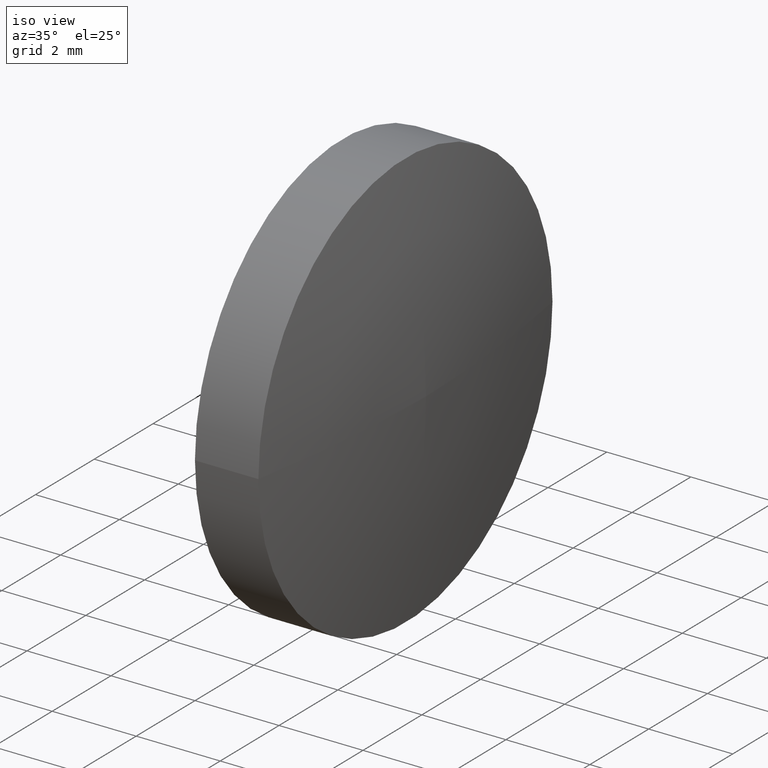
[diagram: clean part render]
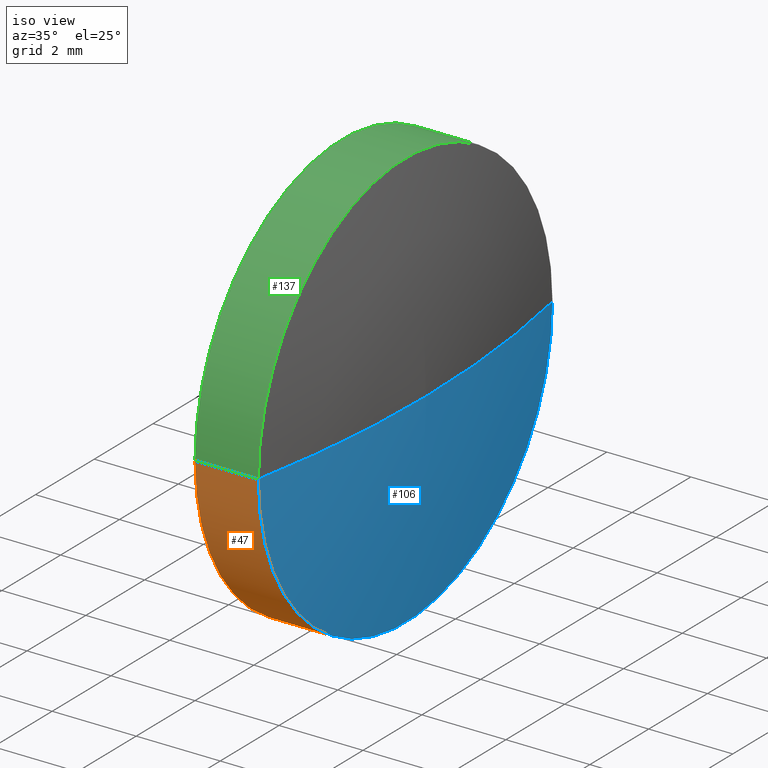
[diagram: same view with three faces highlighted in distinct colors, each labeled with its STEP entity id]
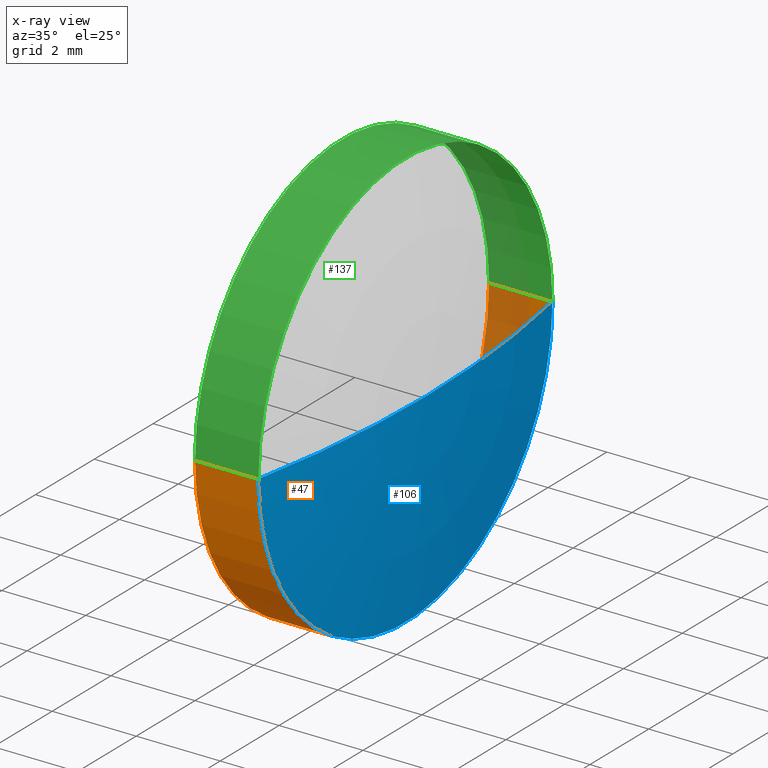
[diagram: x-ray of the same camera — body ghosted, the three highlighted faces saturated]
A machine part, iso view with three faces highlighted in distinct colors.
The next image is the same camera in x-ray (body ghosted, the three faces saturated) — at least one of them is partly hidden behind the body in this view.
Their STEP definitions:

[orange] entity #47 — the highlighted cylindrical surface (partial cylindrical patch) has radius 5 mm, axis along (1, 0, -0).
#10 = DIRECTION ( 'NONE',  ( 1.000000000000000000, 1.665334536937733300E-013, -0.0000000000000000000 ) ) ;
#24 = EDGE_CURVE ( 'NONE', #127, #59, #107, .T. ) ;
#30 = CARTESIAN_POINT ( 'NONE',  ( 896.0368167638563400, 346.9456152504998300, 0.0000000000000000000 ) ) ;
#31 = CYLINDRICAL_SURFACE ( 'NONE', #115, 4.999999999999893400 ) ;
#40 = DIRECTION ( 'NONE',  ( 1.000000000000000000, 1.665334536937733300E-013, -0.0000000000000000000 ) ) ;
#43 = DIRECTION ( 'NONE',  ( -1.776356839400249000E-013, 1.000000000000000000, 0.0000000000000000000 ) ) ;
#47 = ADVANCED_FACE ( 'NONE', ( #165 ), #31, .T. ) ;
#49 = VECTOR ( 'NONE', #151, 1000.000000000000000 ) ;
#53 = ORIENTED_EDGE ( 'NONE', *, *, #158, .F. ) ;
#54 = CARTESIAN_POINT ( 'NONE',  ( 897.5468167638563300, 346.9456152505001100, 0.0000000000000000000 ) ) ;
#55 = CARTESIAN_POINT ( 'NONE',  ( 898.0368167638563400, 341.9456152505002800, 6.123233995736601600E-016 ) ) ;
#56 = CIRCLE ( 'NONE', #132, 5.000000000000004400 ) ;
#59 = VERTEX_POINT ( 'NONE', #89 ) ;
#60 = DIRECTION ( 'NONE',  ( 1.000000000000000000, 1.665334536937733300E-013, -0.0000000000000000000 ) ) ;
#62 = CARTESIAN_POINT ( 'NONE',  ( 898.0368167638548600, 351.9456152505000500, 0.0000000000000000000 ) ) ;
#65 = VERTEX_POINT ( 'NONE', #71 ) ;
#71 = CARTESIAN_POINT ( 'NONE',  ( 897.5468167638571200, 341.9456152505001100, 6.123233995736743600E-016 ) ) ;
#72 = CARTESIAN_POINT ( 'NONE',  ( 898.0368167638556500, 346.9456152505001700, 0.0000000000000000000 ) ) ;
#77 = EDGE_CURVE ( 'NONE', #163, #127, #56, .T. ) ;
#84 = VECTOR ( 'NONE', #10, 1000.000000000000000 ) ;
#89 = CARTESIAN_POINT ( 'NONE',  ( 897.5468167638555300, 351.9456152505000500, 0.0000000000000000000 ) ) ;
#91 = EDGE_LOOP ( 'NONE', ( #100, #123, #126, #53 ) ) ;
#100 = ORIENTED_EDGE ( 'NONE', *, *, #150, .F. ) ;
#107 = LINE ( 'NONE', #62, #84 ) ;
#112 = CIRCLE ( 'NONE', #160, 4.999999999999726400 ) ;
#113 = DIRECTION ( 'NONE',  ( -1.554312234475252200E-013, 1.000000000000000000, 0.0000000000000000000 ) ) ;
#115 = AXIS2_PLACEMENT_3D ( 'NONE', #72, #161, #113 ) ;
#123 = ORIENTED_EDGE ( 'NONE', *, *, #77, .T. ) ;
#124 = LINE ( 'NONE', #55, #49 ) ;
#126 = ORIENTED_EDGE ( 'NONE', *, *, #24, .T. ) ;
#127 = VERTEX_POINT ( 'NONE', #159 ) ;
#129 = CARTESIAN_POINT ( 'NONE',  ( 896.0368167638571300, 341.9456152504998300, 6.123233995736940800E-016 ) ) ;
#132 = AXIS2_PLACEMENT_3D ( 'NONE', #30, #60, #43 ) ;
#150 = EDGE_CURVE ( 'NONE', #163, #65, #124, .T. ) ;
#151 = DIRECTION ( 'NONE',  ( 1.000000000000000000, 1.665334536937733300E-013, -0.0000000000000000000 ) ) ;
#153 = DIRECTION ( 'NONE',  ( -1.554312234475304200E-013, 1.000000000000000000, 0.0000000000000000000 ) ) ;
#158 = EDGE_CURVE ( 'NONE', #65, #59, #112, .T. ) ;
#159 = CARTESIAN_POINT ( 'NONE',  ( 896.0368167638555400, 351.9456152504998300, 0.0000000000000000000 ) ) ;
#160 = AXIS2_PLACEMENT_3D ( 'NONE', #54, #40, #153 ) ;
#161 = DIRECTION ( 'NONE',  ( 1.000000000000000000, 1.665334536937733300E-013, -0.0000000000000000000 ) ) ;
#163 = VERTEX_POINT ( 'NONE', #129 ) ;
#165 = FACE_OUTER_BOUND ( 'NONE', #91, .T. ) ;

[blue] entity #106 — the highlighted toroidal blend (fillet) surface has major radius 0.0003 mm and minor (blend) radius 25.7518 mm.
#6 = ORIENTED_EDGE ( 'NONE', *, *, #158, .T. ) ;
#7 = CARTESIAN_POINT ( 'NONE',  ( 898.0368167638556500, 346.9456152505001700, 0.0000000000000000000 ) ) ;
#12 = CARTESIAN_POINT ( 'NONE',  ( 872.2850364027236800, 346.9452797258829300, 4.108991433410919200E-020 ) ) ;
#18 = EDGE_CURVE ( 'NONE', #59, #82, #20, .T. ) ;
#20 = CIRCLE ( 'NONE', #38, 25.75178036331771000 ) ;
#21 = ORIENTED_EDGE ( 'NONE', *, *, #104, .F. ) ;
#32 = DIRECTION ( 'NONE',  ( 0.0000000000000000000, -1.000000000000000000, 1.224646799147353500E-016 ) ) ;
#38 = AXIS2_PLACEMENT_3D ( 'NONE', #41, #133, #42 ) ;
#40 = DIRECTION ( 'NONE',  ( 1.000000000000000000, 1.665334536937733300E-013, -0.0000000000000000000 ) ) ;
#41 = CARTESIAN_POINT ( 'NONE',  ( 872.2850364027236800, 346.9459507751088800, 0.0000000000000000000 ) ) ;
#42 = DIRECTION ( 'NONE',  ( -1.000000000000000000, 0.0000000000000000000, 0.0000000000000000000 ) ) ;
#54 = CARTESIAN_POINT ( 'NONE',  ( 897.5468167638563300, 346.9456152505001100, 0.0000000000000000000 ) ) ;
#59 = VERTEX_POINT ( 'NONE', #89 ) ;
#61 = AXIS2_PLACEMENT_3D ( 'NONE', #12, #114, #32 ) ;
#65 = VERTEX_POINT ( 'NONE', #71 ) ;
#68 = AXIS2_PLACEMENT_3D ( 'NONE', #103, #75, #164 ) ;
#71 = CARTESIAN_POINT ( 'NONE',  ( 897.5468167638571200, 341.9456152505001100, 6.123233995736743600E-016 ) ) ;
#75 = DIRECTION ( 'NONE',  ( 1.000000000000000000, 1.665334536937733300E-013, -0.0000000000000000000 ) ) ;
#82 = VERTEX_POINT ( 'NONE', #7 ) ;
#87 = CIRCLE ( 'NONE', #61, 25.75178036331765700 ) ;
#89 = CARTESIAN_POINT ( 'NONE',  ( 897.5468167638555300, 351.9456152505000500, 0.0000000000000000000 ) ) ;
#92 = ORIENTED_EDGE ( 'NONE', *, *, #18, .T. ) ;
#99 = TOROIDAL_SURFACE ( 'NONE', #68, 0.0003355246129963153000, 25.75178036331766400 ) ;
#103 = CARTESIAN_POINT ( 'NONE',  ( 872.2850364027236800, 346.9456152504959100, 0.0000000000000000000 ) ) ;
#104 = EDGE_CURVE ( 'NONE', #65, #82, #87, .T. ) ;
#105 = FACE_OUTER_BOUND ( 'NONE', #143, .T. ) ;
#106 = ADVANCED_FACE ( 'NONE', ( #105 ), #99, .T. ) ;
#112 = CIRCLE ( 'NONE', #160, 4.999999999999726400 ) ;
#114 = DIRECTION ( 'NONE',  ( -2.039446610170334800E-029, 1.224646799147353200E-016, 1.000000000000000000 ) ) ;
#133 = DIRECTION ( 'NONE',  ( -0.0000000000000000000, 0.0000000000000000000, -1.000000000000000000 ) ) ;
#143 = EDGE_LOOP ( 'NONE', ( #21, #6, #92 ) ) ;
#153 = DIRECTION ( 'NONE',  ( -1.554312234475304200E-013, 1.000000000000000000, 0.0000000000000000000 ) ) ;
#158 = EDGE_CURVE ( 'NONE', #65, #59, #112, .T. ) ;
#160 = AXIS2_PLACEMENT_3D ( 'NONE', #54, #40, #153 ) ;
#164 = DIRECTION ( 'NONE',  ( -1.665334536937733300E-013, 1.000000000000000000, 0.0000000000000000000 ) ) ;

[green] entity #137 — the highlighted cylindrical surface (partial cylindrical patch) has radius 5 mm, axis along (1, 0, -0).
#5 = AXIS2_PLACEMENT_3D ( 'NONE', #110, #122, #131 ) ;
#10 = DIRECTION ( 'NONE',  ( 1.000000000000000000, 1.665334536937733300E-013, -0.0000000000000000000 ) ) ;
#23 = ORIENTED_EDGE ( 'NONE', *, *, #150, .T. ) ;
#24 = EDGE_CURVE ( 'NONE', #127, #59, #107, .T. ) ;
#33 = AXIS2_PLACEMENT_3D ( 'NONE', #120, #96, #51 ) ;
#44 = CIRCLE ( 'NONE', #5, 4.999999999999726400 ) ;
#49 = VECTOR ( 'NONE', #151, 1000.000000000000000 ) ;
#51 = DIRECTION ( 'NONE',  ( -1.554312234475252200E-013, 1.000000000000000000, 0.0000000000000000000 ) ) ;
#55 = CARTESIAN_POINT ( 'NONE',  ( 898.0368167638563400, 341.9456152505002800, 6.123233995736601600E-016 ) ) ;
#57 = EDGE_LOOP ( 'NONE', ( #136, #23, #70, #144 ) ) ;
#59 = VERTEX_POINT ( 'NONE', #89 ) ;
#62 = CARTESIAN_POINT ( 'NONE',  ( 898.0368167638548600, 351.9456152505000500, 0.0000000000000000000 ) ) ;
#63 = EDGE_CURVE ( 'NONE', #127, #163, #102, .T. ) ;
#65 = VERTEX_POINT ( 'NONE', #71 ) ;
#70 = ORIENTED_EDGE ( 'NONE', *, *, #130, .F. ) ;
#71 = CARTESIAN_POINT ( 'NONE',  ( 897.5468167638571200, 341.9456152505001100, 6.123233995736743600E-016 ) ) ;
#84 = VECTOR ( 'NONE', #10, 1000.000000000000000 ) ;
#86 = DIRECTION ( 'NONE',  ( -1.776356839400249000E-013, 1.000000000000000000, 0.0000000000000000000 ) ) ;
#89 = CARTESIAN_POINT ( 'NONE',  ( 897.5468167638555300, 351.9456152505000500, 0.0000000000000000000 ) ) ;
#96 = DIRECTION ( 'NONE',  ( 1.000000000000000000, 1.665334536937733300E-013, -0.0000000000000000000 ) ) ;
#102 = CIRCLE ( 'NONE', #118, 5.000000000000004400 ) ;
#107 = LINE ( 'NONE', #62, #84 ) ;
#110 = CARTESIAN_POINT ( 'NONE',  ( 897.5468167638563300, 346.9456152505001100, 0.0000000000000000000 ) ) ;
#118 = AXIS2_PLACEMENT_3D ( 'NONE', #125, #157, #86 ) ;
#120 = CARTESIAN_POINT ( 'NONE',  ( 898.0368167638556500, 346.9456152505001700, 0.0000000000000000000 ) ) ;
#122 = DIRECTION ( 'NONE',  ( 1.000000000000000000, 1.665334536937733300E-013, -0.0000000000000000000 ) ) ;
#124 = LINE ( 'NONE', #55, #49 ) ;
#125 = CARTESIAN_POINT ( 'NONE',  ( 896.0368167638563400, 346.9456152504998300, 0.0000000000000000000 ) ) ;
#127 = VERTEX_POINT ( 'NONE', #159 ) ;
#129 = CARTESIAN_POINT ( 'NONE',  ( 896.0368167638571300, 341.9456152504998300, 6.123233995736940800E-016 ) ) ;
#130 = EDGE_CURVE ( 'NONE', #59, #65, #44, .T. ) ;
#131 = DIRECTION ( 'NONE',  ( -1.554312234475304200E-013, 1.000000000000000000, 0.0000000000000000000 ) ) ;
#136 = ORIENTED_EDGE ( 'NONE', *, *, #63, .T. ) ;
#137 = ADVANCED_FACE ( 'NONE', ( #156 ), #162, .T. ) ;
#144 = ORIENTED_EDGE ( 'NONE', *, *, #24, .F. ) ;
#150 = EDGE_CURVE ( 'NONE', #163, #65, #124, .T. ) ;
#151 = DIRECTION ( 'NONE',  ( 1.000000000000000000, 1.665334536937733300E-013, -0.0000000000000000000 ) ) ;
#156 = FACE_OUTER_BOUND ( 'NONE', #57, .T. ) ;
#157 = DIRECTION ( 'NONE',  ( 1.000000000000000000, 1.665334536937733300E-013, -0.0000000000000000000 ) ) ;
#159 = CARTESIAN_POINT ( 'NONE',  ( 896.0368167638555400, 351.9456152504998300, 0.0000000000000000000 ) ) ;
#162 = CYLINDRICAL_SURFACE ( 'NONE', #33, 4.999999999999893400 ) ;
#163 = VERTEX_POINT ( 'NONE', #129 ) ;